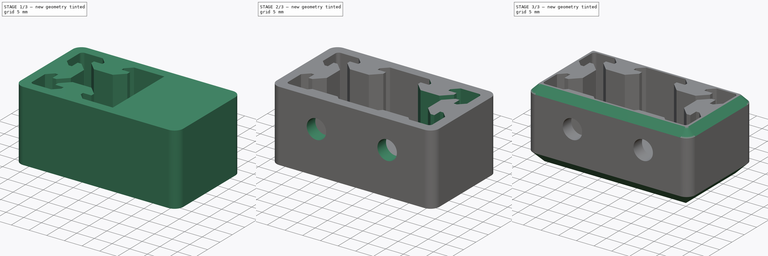
[diagram: build sequence overview — one tinted view per stage of 3, left to right]
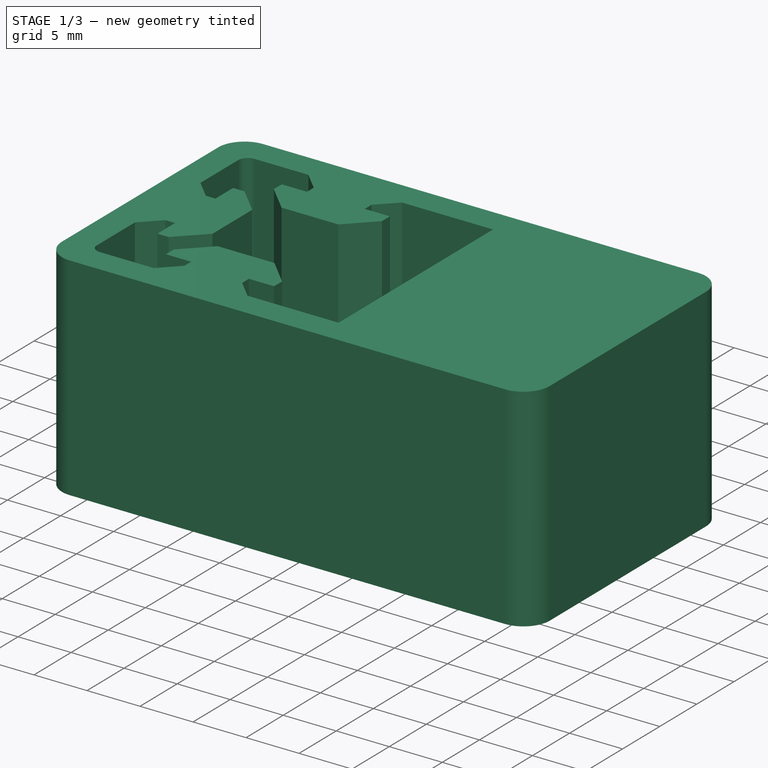
[diagram: stage 1 of 3 — iso view after this stage's code; geometry added in this stage tinted green]
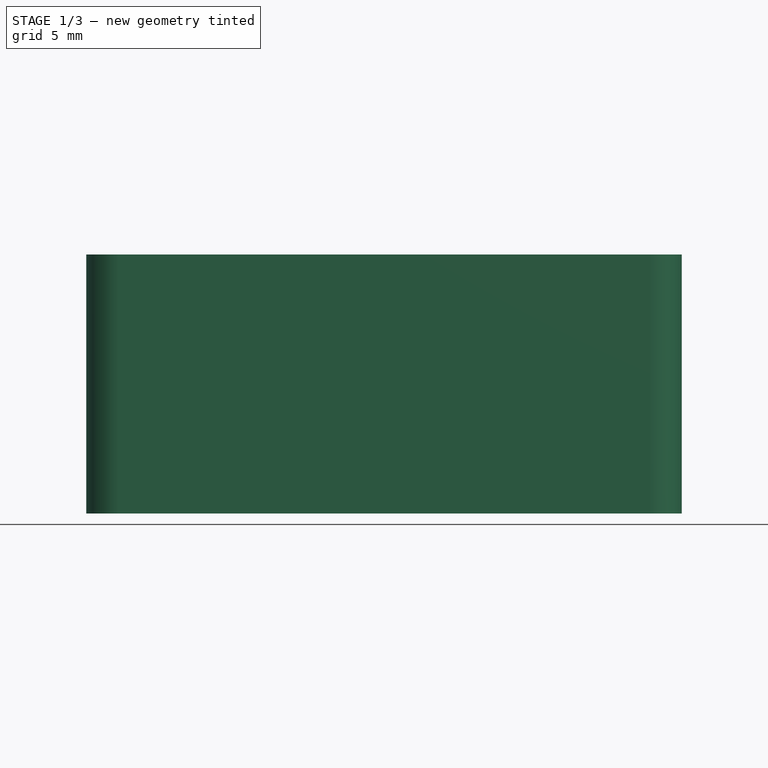
[diagram: stage 1 of 3 — front view after this stage's code; geometry added in this stage tinted green]
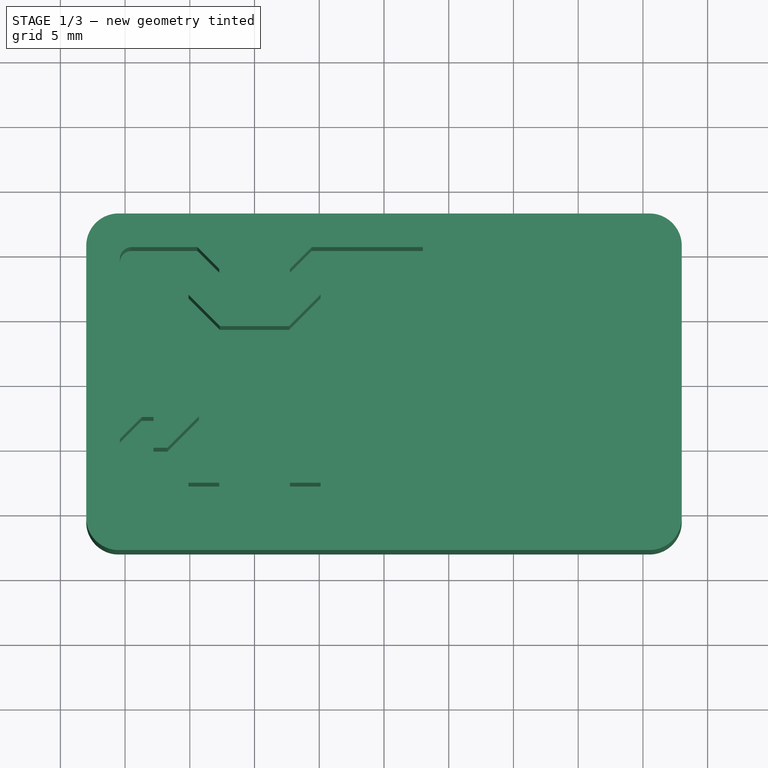
[diagram: stage 1 of 3 — top view after this stage's code; geometry added in this stage tinted green]
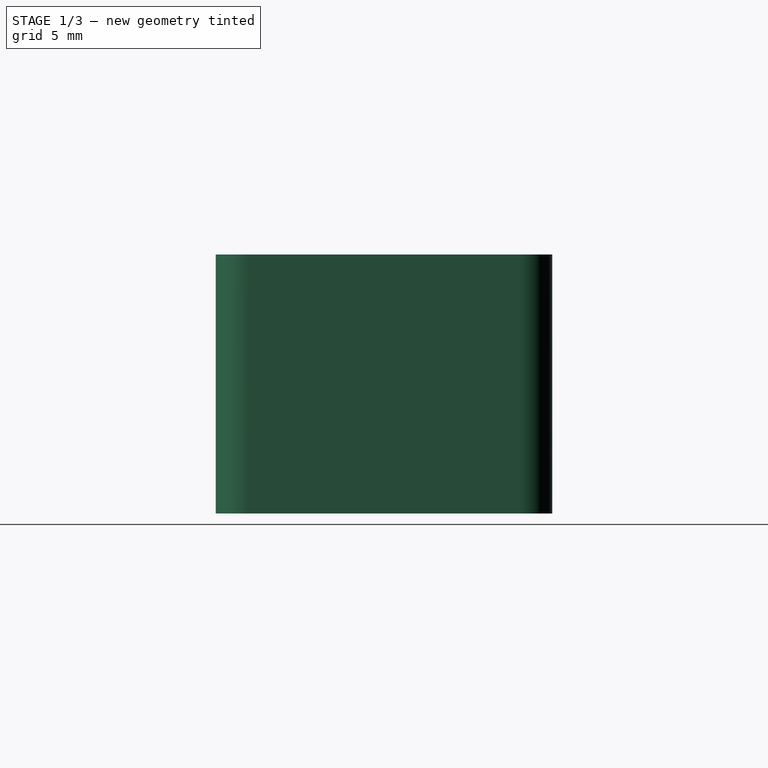
[diagram: stage 1 of 3 — right view after this stage's code; geometry added in this stage tinted green]
FCSTD DOCUMENT  (FreeCAD 0.20R26554 (Git))
Label: 2040 foot
License: All rights reserved
LicenseURL: http://en.wikipedia.org/wiki/All_rights_reserved
objects: Sketcher::SketchObject×4, PartDesign::Pocket×3, PartDesign::Chamfer×2, Part::Feature×1, PartDesign::ShapeBinder×1, PartDesign::Pad×1, PartDesign::Mirrored×1, PartDesign::Body×1
note: 20 computed .brp shape members not serialized (recipe doc carries the construction recipe); baked Part::Feature solids carry a one-line shape summary decoded from their .brp

FEATURE [Part::Feature] Part__Feature  label="2020-800"
  Placement = pos=(-10,0,0) rot=(0,0,1;0rad)
  shape: bbox 40 x 20 x 800 mm, 112 faces (baked)
FEATURE [PartDesign::ShapeBinder] ShapeBinder
  Placement = pos=(-10,0,0) rot=(0,0,1;0rad)
  Support = -> [Part__Feature]
  TraceSupport = false
FEATURE [Sketcher::SketchObject] Sketch
  ExternalGeometry = -> [ShapeBinder]
  FullyConstrained = true
  MapMode = 5
  Support = -> [XY_Plane]
  sketch-geometry (14):
    g0: ArcOfCircle CenterX=-20.5 CenterY=10.5 CenterZ=0 NormalX=0 NormalY=0 NormalZ=1 AngleXU=0 Radius=2.5 StartAngle=1.5708 EndAngle=3.14159
    g1: LineSegment StartX=-20.5 StartY=13 StartZ=0 EndX=20.5 EndY=13 EndZ=0
    g2: ArcOfCircle CenterX=20.5 CenterY=10.5 CenterZ=0 NormalX=0 NormalY=0 NormalZ=1 AngleXU=0 Radius=2.5 StartAngle=1e-16 EndAngle=1.5708
    g3: LineSegment StartX=23 StartY=10.5 StartZ=0 EndX=23 EndY=-10.5 EndZ=0
    g4: ArcOfCircle CenterX=20.5 CenterY=-10.5 CenterZ=0 NormalX=0 NormalY=0 NormalZ=1 AngleXU=0 Radius=2.5 StartAngle=4.71239 EndAngle=6.28319
    g5: LineSegment StartX=20.5 StartY=-13 StartZ=0 EndX=-20.5 EndY=-13 EndZ=0
    g6: ArcOfCircle CenterX=-20.5 CenterY=-10.5 CenterZ=0 NormalX=0 NormalY=0 NormalZ=1 AngleXU=0 Radius=2.5 StartAngle=3.14159 EndAngle=4.71239
    g7: LineSegment StartX=-23 StartY=-10.5 StartZ=0 EndX=-23 EndY=10.5 EndZ=0
    g8: GeomPoint X=-23 Y=13 Z=0
    g9: GeomPoint X=23 Y=-13 Z=0
    g10: LineSegment StartX=-19.5 StartY=-10 StartZ=0 EndX=-19.5 EndY=-13 EndZ=0
    g11: LineSegment StartX=19.5 StartY=10 StartZ=0 EndX=19.5 EndY=13 EndZ=0
    g12: LineSegment StartX=20 StartY=9.5 StartZ=0 EndX=23 EndY=9.5 EndZ=0
    g13: LineSegment StartX=-20 StartY=-9.5 StartZ=0 EndX=-23 EndY=-9.5 EndZ=0
  constraints (36):
    c: Tangent(g0,g1) = 1.5708
    c: Tangent(g1,g2) = 1.5708
    c: Tangent(g2,g3) = 1.5708
    c: Tangent(g3,g4) = 1.5708
    c: Tangent(g4,g5) = 1.5708
    c: Tangent(g5,g6) = 1.5708
    c: Tangent(g6,g7) = 1.5708
    c: Tangent(g7,g0) = 1.5708
    c: Horizontal(g1)
    c: Horizontal(g5)
    c: Vertical(g3)
    c: Vertical(g7)
    c: Equal(g0,g2)
    c: Equal(g2,g4)
    c: Equal(g4,g6)
    c: PointOnObject(g8,g1)
    c: PointOnObject(g8,g7)
    c: PointOnObject(g9,g3)
    c: PointOnObject(g9,g5)
    c: Diameter(g4) = 5
    c: Coincident(g10,g-5)
    c: PointOnObject(g10,g5)
    c: Vertical(g10)
    c: Coincident(g11,g-4)
    c: PointOnObject(g11,g1)
    c: Vertical(g11)
    c: Coincident(g12,g-6)
    c: PointOnObject(g12,g3)
    c: Horizontal(g12)
    c: Equal(g12,g11)
    c: DistanceX(g12,g12) = 3
    c: Equal(g10,g12)
    c: Coincident(g13,g-3)
    c: PointOnObject(g13,g7)
    c: Horizontal(g13)
    c: Equal(g13,g12)
FEATURE [PartDesign::Pad] Pad
  Direction = (0,0,1)
  Length = 20
  Length2 = 100
  Profile = -> Sketch
  ReferenceAxis = -> Sketch [N_Axis]
  Refine = true
  Type = 0
FEATURE [Sketcher::SketchObject] Sketch001
  ExternalGeometry = -> [ShapeBinder]
  FullyConstrained = true
  MapMode = 5
  Placement = pos=(0,0,20) rot=(0,0,1;0rad)
  Support = -> [Pad]
  sketch-geometry (83):
    g0: LineSegment StartX=-19.5 StartY=10.4 StartZ=0 EndX=-14.4143 EndY=10.4 EndZ=0
    g1: LineSegment StartX=-20.4 StartY=4.41431 StartZ=0 EndX=-18.7107 EndY=2.725 EndZ=0
    g2: LineSegment StartX=-20.4 StartY=9.5 StartZ=0 EndX=-20.4 EndY=4.41431 EndZ=0
    g3: LineSegment StartX=-19.5 StartY=10 StartZ=0 EndX=-19.5 EndY=10.4 EndZ=0
    g4: LineSegment StartX=-20 StartY=9.5 StartZ=0 EndX=-20.4 EndY=9.5 EndZ=0
    g5: LineSegment StartX=-18.7107 StartY=2.725 StartZ=0 EndX=-17.8 EndY=2.725 EndZ=0
    g6: LineSegment StartX=-17.8 StartY=2.725 StartZ=0 EndX=-17.8 EndY=5.1 EndZ=0
    g7: LineSegment StartX=-17.8 StartY=5.1 StartZ=0 EndX=-16.7263 EndY=5.1 EndZ=0
    g8: LineSegment StartX=-16.7263 StartY=5.1 StartZ=0 EndX=-14.3 EndY=2.67365 EndZ=0
    g9: LineSegment StartX=-14.3 StartY=2.67365 StartZ=0 EndX=-14.3 EndY=-2.67365 EndZ=0
    g10: LineSegment StartX=-14.3 StartY=-2.67365 StartZ=0 EndX=-16.7263 EndY=-5.1 EndZ=0
    g11: LineSegment StartX=-16.7263 StartY=-5.1 StartZ=0 EndX=-17.8 EndY=-5.1 EndZ=0
    g12: LineSegment StartX=-17.8 StartY=-5.1 StartZ=0 EndX=-17.8 EndY=-2.725 EndZ=0
    g13: LineSegment StartX=-17.8 StartY=-2.725 StartZ=0 EndX=-18.7107 EndY=-2.725 EndZ=0
    g14: LineSegment StartX=-18.7107 StartY=-2.725 StartZ=0 EndX=-20.4 EndY=-4.41431 EndZ=0
    g15: LineSegment StartX=-20.4 StartY=-4.41431 StartZ=0 EndX=-20.4 EndY=-9.5 EndZ=0
    g16: LineSegment StartX=-19.5 StartY=-10.4 StartZ=0 EndX=-14.4143 EndY=-10.4 EndZ=0
    g17: LineSegment StartX=-14.4143 StartY=-10.4 StartZ=0 EndX=-12.725 EndY=-8.71069 EndZ=0
    g18: LineSegment StartX=-12.725 StartY=-8.71069 StartZ=0 EndX=-12.725 EndY=-7.8 EndZ=0
    g19: LineSegment StartX=-12.725 StartY=-7.8 StartZ=0 EndX=-15.1 EndY=-7.8 EndZ=0
    g20: LineSegment StartX=-15.1 StartY=-7.8 StartZ=0 EndX=-15.1 EndY=-6.72635 EndZ=0
    g21: LineSegment StartX=-15.1 StartY=-6.72635 StartZ=0 EndX=-12.6737 EndY=-4.3 EndZ=0
    g22: LineSegment StartX=-12.6737 StartY=-4.3 StartZ=0 EndX=-7.32635 EndY=-4.3 EndZ=0
    g23: LineSegment StartX=-7.32635 StartY=-4.3 StartZ=0 EndX=-4.9 EndY=-6.72635 EndZ=0
    g24: LineSegment StartX=-4.9 StartY=-6.72635 StartZ=0 EndX=-4.9 EndY=-7.8 EndZ=0
    g25: LineSegment StartX=-4.9 StartY=-7.8 StartZ=0 EndX=-7.275 EndY=-7.8 EndZ=0
    g26: LineSegment StartX=-7.275 StartY=-7.8 StartZ=0 EndX=-7.275 EndY=-8.71069 EndZ=0
    g27: LineSegment StartX=-7.275 StartY=-8.71069 StartZ=0 EndX=-5.58569 EndY=-10.4 EndZ=0
    g28: LineSegment StartX=-5.58569 StartY=-10.4 StartZ=0 EndX=3 EndY=-10.4 EndZ=0
    g29: LineSegment StartX=3 StartY=10.4 StartZ=0 EndX=-5.58569 EndY=10.4 EndZ=0
    g30: LineSegment StartX=-5.58569 StartY=10.4 StartZ=0 EndX=-7.275 EndY=8.71069 EndZ=0
    g31: LineSegment StartX=-7.275 StartY=8.71069 StartZ=0 EndX=-7.275 EndY=7.8 EndZ=0
    g32: LineSegment StartX=-7.275 StartY=7.8 StartZ=0 EndX=-4.9 EndY=7.8 EndZ=0
    g33: LineSegment StartX=-4.9 StartY=7.8 StartZ=0 EndX=-4.9 EndY=6.72635 EndZ=0
    g34: LineSegment StartX=-4.9 StartY=6.72635 StartZ=0 EndX=-7.32635 EndY=4.3 EndZ=0
    g35: LineSegment StartX=-7.32635 StartY=4.3 StartZ=0 EndX=-12.6737 EndY=4.3 EndZ=0
    g36: LineSegment StartX=-12.6737 StartY=4.3 StartZ=0 EndX=-15.1 EndY=6.72635 EndZ=0
    g37: LineSegment StartX=-15.1 StartY=6.72635 StartZ=0 EndX=-15.1 EndY=7.8 EndZ=0
    g38: LineSegment StartX=-15.1 StartY=7.8 StartZ=0 EndX=-12.725 EndY=7.8 EndZ=0
    g39: LineSegment StartX=-12.725 StartY=7.8 StartZ=0 EndX=-12.725 EndY=8.71069 EndZ=0
    g40: LineSegment StartX=-12.725 StartY=8.71069 StartZ=0 EndX=-14.4143 EndY=10.4 EndZ=0
    g41: LineSegment StartX=-18.545 StartY=3.125 StartZ=0 EndX=-18.545 EndY=2.725 EndZ=0
    g42: LineSegment StartX=-18.2 StartY=3.125 StartZ=0 EndX=-17.8 EndY=3.125 EndZ=0
    g43: LineSegment StartX=-17.8 StartY=5.1 StartZ=0 EndX=-17.8 EndY=5.5 EndZ=0
    g44: LineSegment StartX=-17.8 StartY=-5.1 StartZ=0 EndX=-17.8 EndY=-5.5 EndZ=0
    g45: LineSegment StartX=-18.2 StartY=-3.125 StartZ=0 EndX=-17.8 EndY=-3.125 EndZ=0
    g46: LineSegment StartX=-18.2 StartY=-3.125 StartZ=0 EndX=-18.2 EndY=-2.725 EndZ=0
    g47: LineSegment StartX=-20 StartY=-4.58 StartZ=0 EndX=-20.4 EndY=-4.58 EndZ=0
    g48: LineSegment StartX=-19.5 StartY=-10 StartZ=0 EndX=-19.5 EndY=-10.4 EndZ=0
    g49: LineSegment StartX=-13.125 StartY=-8.545 StartZ=0 EndX=-12.725 EndY=-8.545 EndZ=0
    g50: LineSegment StartX=-13.125 StartY=-8.2 StartZ=0 EndX=-13.125 EndY=-7.8 EndZ=0
    g51: LineSegment StartX=-15.1 StartY=-7.8 StartZ=0 EndX=-15.5 EndY=-7.8 EndZ=0
    g52: LineSegment StartX=-12.6737 StartY=-4.3 StartZ=0 EndX=-12.6737 EndY=-3.9 EndZ=0
    g53: LineSegment StartX=-4.9 StartY=-7.8 StartZ=0 EndX=-4.5 EndY=-7.8 EndZ=0
    g54: LineSegment StartX=-6.875 StartY=-8.2 StartZ=0 EndX=-6.875 EndY=-7.8 EndZ=0
    g55: LineSegment StartX=-5.42 StartY=-10 StartZ=0 EndX=-5.42 EndY=-10.4 EndZ=0
    g56: LineSegment StartX=-13.125 StartY=8.545 StartZ=0 EndX=-12.725 EndY=8.545 EndZ=0
    g57: LineSegment StartX=-13.125 StartY=8.2 StartZ=0 EndX=-13.125 EndY=7.8 EndZ=0
    g58: LineSegment StartX=-15.1 StartY=7.8 StartZ=0 EndX=-15.5 EndY=7.8 EndZ=0
    g59: LineSegment StartX=-12.6737 StartY=4.3 StartZ=0 EndX=-12.6737 EndY=3.9 EndZ=0
    g60: LineSegment StartX=-7.32635 StartY=4.3 StartZ=0 EndX=-7.0435 EndY=4.01716 EndZ=0
    g61: LineSegment StartX=-15.1 StartY=6.72635 StartZ=0 EndX=-15.3828 EndY=6.4435 EndZ=0
    g62: LineSegment StartX=-4.9 StartY=7.8 StartZ=0 EndX=-4.9 EndY=8.2 EndZ=0
    g63: LineSegment StartX=-6.875 StartY=8.545 StartZ=0 EndX=-7.15784 EndY=8.82784 EndZ=0
    g64: LineSegment StartX=-5.42 StartY=10 StartZ=0 EndX=-5.42 EndY=10.4 EndZ=0
    g65: LineSegment StartX=-12.6737 StartY=-4.3 StartZ=0 EndX=-12.9565 EndY=-4.01716 EndZ=0
    g66: LineSegment StartX=-14.58 StartY=-10 StartZ=0 EndX=-14.2972 EndY=-10.2828 EndZ=0
    g67: LineSegment StartX=-18.545 StartY=-3.125 StartZ=0 EndX=-18.8278 EndY=-2.84216 EndZ=0
    g68: LineSegment StartX=-16.7263 StartY=-5.1 StartZ=0 EndX=-16.4435 EndY=-5.38284 EndZ=0
    g69: LineSegment StartX=-20 StartY=4.58 StartZ=0 EndX=-20.2828 EndY=4.29716 EndZ=0
    g70: LineSegment StartX=-14.58 StartY=10 StartZ=0 EndX=-14.2972 EndY=10.2828 EndZ=0
    g71: LineSegment StartX=-6.875 StartY=8.2 StartZ=0 EndX=-7.275 EndY=8.2 EndZ=0
    g72: LineSegment StartX=-4.9 StartY=6.72635 StartZ=0 EndX=-4.5 EndY=6.72635 EndZ=0
    g73: LineSegment StartX=-7.32635 StartY=-4.3 StartZ=0 EndX=-7.0435 EndY=-4.01716 EndZ=0
    g74: LineSegment StartX=-6.875 StartY=-8.545 StartZ=0 EndX=-7.15784 EndY=-8.82784 EndZ=0
    g75: LineSegment StartX=-6.875 StartY=-8.2 StartZ=0 EndX=-7.275 EndY=-8.2 EndZ=0
    g76: LineSegment StartX=-16.7263 StartY=5.1 StartZ=0 EndX=-16.4435 EndY=5.38284 EndZ=0
    g77: LineSegment StartX=-14.3 StartY=2.67365 StartZ=0 EndX=-13.9 EndY=2.67365 EndZ=0
    g78: LineSegment StartX=3 StartY=10.4 StartZ=0 EndX=3 EndY=-10.4 EndZ=0
    g79: ArcOfCircle CenterX=-19.5 CenterY=9.5 CenterZ=0 NormalX=0 NormalY=0 NormalZ=1 AngleXU=0 Radius=0.9 StartAngle=1.5708 EndAngle=3.14159
    g80: GeomPoint X=-20.4 Y=10.4 Z=0
    g81: ArcOfCircle CenterX=-19.5 CenterY=-9.5 CenterZ=0 NormalX=0 NormalY=0 NormalZ=1 AngleXU=0 Radius=0.9 StartAngle=3.14159 EndAngle=4.71239
    g82: GeomPoint X=-20.4 Y=-10.4 Z=0
  constraints (243):
    c: Horizontal(g0)
    c: Coincident(g2,g1)
    c: Coincident(g3,g-3)
    c: Coincident(g4,g-4)
    c: PointOnObject(g4,g2)
    c: Horizontal(g4)
    c: DistanceX(g4,g4) = 0.4
    c: Equal(g4,g3)
    c: Vertical(g2)
    c: Vertical(g3)
    c: Coincident(g5,g1)
    c: Horizontal(g5)
    c: Coincident(g6,g5)
    c: Vertical(g6)
    c: Coincident(g7,g6)
    c: Horizontal(g7)
    c: Coincident(g8,g7)
    c: Coincident(g9,g8)
    c: Vertical(g9)
    c: Coincident(g10,g9)
    c: Coincident(g11,g10)
    c: Horizontal(g11)
    c: Coincident(g12,g11)
    c: Vertical(g12)
    c: Coincident(g13,g12)
    c: Horizontal(g13)
    c: Coincident(g14,g13)
    c: Coincident(g15,g14)
    c: Vertical(g15)
    c: Horizontal(g16)
    c: Coincident(g16,g17)
    c: Coincident(g17,g18)
    c: Coincident(g18,g19)
    c: Horizontal(g19)
    c: Coincident(g19,g20)
    c: Vertical(g20)
    c: Coincident(g20,g21)
    c: Coincident(g21,g22)
    c: Horizontal(g22)
    c: Coincident(g22,g23)
    c: Coincident(g23,g24)
    c: Vertical(g24)
    c: Coincident(g24,g25)
    c: Horizontal(g25)
    c: Coincident(g25,g26)
    c: Vertical(g26)
    c: Coincident(g26,g27)
    c: Coincident(g27,g28)
    c: Horizontal(g28)
    c: Horizontal(g29)
    c: Coincident(g29,g30)
    c: Coincident(g30,g31)
    c: Vertical(g31)
    c: Coincident(g31,g32)
    c: Horizontal(g32)
    c: Coincident(g32,g33)
    c: Vertical(g33)
    c: Coincident(g33,g34)
    c: Coincident(g34,g35)
    c: Horizontal(g35)
    c: Coincident(g35,g36)
    c: Coincident(g36,g37)
    c: Vertical(g37)
    c: Coincident(g37,g38)
    c: Horizontal(g38)
    c: Coincident(g38,g39)
    c: Vertical(g39)
    c: Coincident(g39,g40)
    c: Coincident(g40,g0)
    c: Vertical(g18)
    c: Coincident(g41,g-5)
    c: PointOnObject(g41,g5)
    c: Vertical(g41)
    c: Equal(g41,g4)
    c: Coincident(g42,g-5)
    c: Horizontal(g42)
    c: Equal(g42,g41)
    c: PointOnObject(g42,g6)
    c: Parallel(g1,g-6)
    c: Coincident(g43,g6)
    c: PointOnObject(g43,g-7)
    c: Vertical(g43)
    c: Equal(g4,g43)
    c: Parallel(g8,g-8)
    c: Parallel(g-10,g10)
    c: Coincident(g44,g11)
    c: PointOnObject(g44,g-11)
    c: Vertical(g44)
    c: Coincident(g45,g-13)
    c: PointOnObject(g45,g12)
    c: Horizontal(g45)
    c: Equal(g44,g45)
    c: Coincident(g46,g45)
    c: PointOnObject(g46,g13)
    c: Vertical(g46)
    c: Equal(g45,g46)
    c: Parallel(g-14,g14)
    c: Coincident(g47,g-15)
    c: PointOnObject(g47,g15)
    c: Horizontal(g47)
    c: Equal(g47,g45)
    c: Coincident(g48,g-16)
    c: Vertical(g48)
    c: Equal(g48,g47)
    c: Parallel(g17,g-17)
    c: Coincident(g49,g-17)
    c: PointOnObject(g49,g18)
    c: Horizontal(g49)
    c: Equal(g49,g48)
    c: Coincident(g50,g-18)
    c: PointOnObject(g50,g19)
    c: Vertical(g50)
    c: Equal(g50,g49)
    c: Coincident(g51,g19)
    c: PointOnObject(g51,g-19)
    c: Horizontal(g51)
    c: Equal(g50,g51)
    c: Parallel(g21,g-20)
    c: Coincident(g52,g21)
    c: PointOnObject(g52,g-21)
    c: Vertical(g52)
    c: Equal(g52,g51)
    c: Parallel(g23,g-23)
    c: Coincident(g53,g24)
    c: PointOnObject(g53,g-24)
    c: Horizontal(g53)
    c: Equal(g53,g52)
    c: Coincident(g54,g-26)
    c: PointOnObject(g54,g25)
    c: Vertical(g54)
    c: Equal(g54,g53)
    c: Parallel(g27,g-27)
    c: Coincident(g55,g-28)
    c: PointOnObject(g55,g28)
    c: Vertical(g55)
    c: Equal(g55,g53)
    c: Parallel(g-29,g40)
    c: Coincident(g56,g-30)
    c: PointOnObject(g56,g39)
    c: Horizontal(g56)
    c: Equal(g56,g3)
    c: Coincident(g57,g-31)
    c: PointOnObject(g57,g38)
    c: Vertical(g57)
    c: Equal(g57,g56)
    c: Coincident(g58,g37)
    c: PointOnObject(g58,g-32)
    c: Horizontal(g58)
    c: Equal(g58,g57)
    c: Parallel(g-33,g36)
    c: Coincident(g59,g35)
    c: PointOnObject(g59,g-34)
    c: Vertical(g59)
    c: Equal(g58,g59)
    c: Parallel(g-36,g34)
    c: PointOnObject(g60,g-36)
    c: Coincident(g60,g34)
    c: Perpendicular(g34,g60)
    c: Coincident(g61,g36)
    c: PointOnObject(g61,g-33)
    c: Perpendicular(g36,g61)
    c: Equal(g61,g58)
    c: Coincident(g62,g32)
    c: Vertical(g62)
    c: PointOnObject(g62,g-38)
    c: Coincident(g63,g-40)
    c: PointOnObject(g63,g30)
    c: Perpendicular(g63,g30)
    c: Coincident(g64,g-41)
    c: PointOnObject(g64,g29)
    c: Vertical(g64)
    c: Equal(g63,g64)
    c: Parallel(g-40,g30)
    c: Coincident(g65,g21)
    c: PointOnObject(g65,g-20)
    c: Perpendicular(g65,g21)
    c: Equal(g65,g52)
    c: Coincident(g66,g-17)
    c: PointOnObject(g66,g17)
    c: Perpendicular(g17,g66)
    c: Equal(g66,g49)
    c: Coincident(g67,g-14)
    c: PointOnObject(g67,g14)
    c: Perpendicular(g67,g14)
    c: Equal(g67,g46)
    c: Coincident(g68,g10)
    c: PointOnObject(g68,g-10)
    c: Perpendicular(g10,g68)
    c: Equal(g68,g44)
    c: Coincident(g69,g-6)
    c: PointOnObject(g69,g1)
    c: Perpendicular(g69,g1)
    c: Equal(g69,g41)
    c: Coincident(g70,g-29)
    c: PointOnObject(g70,g40)
    c: Perpendicular(g40,g70)
    c: Equal(g70,g56)
    c: Coincident(g71,g-39)
    c: PointOnObject(g71,g31)
    c: Horizontal(g71)
    c: Equal(g71,g63)
    c: Equal(g71,g62)
    c: Coincident(g72,g33)
    c: PointOnObject(g72,g-37)
    c: Horizontal(g72)
    c: Equal(g72,g62)
    c: Equal(g72,g4)
    c: Equal(g60,g72)
    c: PointOnObject(g73,g-23)
    c: Coincident(g73,g22)
    c: Perpendicular(g23,g73)
    c: Equal(g73,g53)
    c: Coincident(g74,g-27)
    c: PointOnObject(g74,g27)
    c: Perpendicular(g74,g27)
    c: Coincident(g75,g54)
    c: PointOnObject(g75,g26)
    c: Equal(g74,g75)
    c: Equal(g75,g54)
    c: Horizontal(g75)
    c: Coincident(g76,g7)
    c: PointOnObject(g76,g-8)
    c: Perpendicular(g8,g76)
    c: Equal(g76,g43)
    c: Coincident(g77,g8)
    c: PointOnObject(g77,g-9)
    c: Horizontal(g77)
    c: Equal(g76,g77)
    c: Equal(g45,g4)
    c: Coincident(g78,g29)
    c: Coincident(g78,g28)
    c: Vertical(g78)
    c: PointOnObject(g-42,g78)
    c: PointOnObject(g80,g2)
    c: PointOnObject(g80,g0)
    c: Tangent(g2,g79) = -1.5708
    c: Tangent(g0,g79) = 1.5708
    c: Coincident(g0,g3)
    c: PointOnObject(g82,g15)
    c: PointOnObject(g82,g16)
    c: Tangent(g15,g81) = -1.5708
    c: Tangent(g16,g81) = -1.5708
    c: Coincident(g16,g48)
FEATURE [PartDesign::Pocket] Pocket
  BaseFeature = -> Pad
  Direction = (0,0,-1)
  Length = 17
  Length2 = 100
  Profile = -> Sketch001
  ReferenceAxis = -> Sketch001 [N_Axis]
  Refine = true
  Type = 0
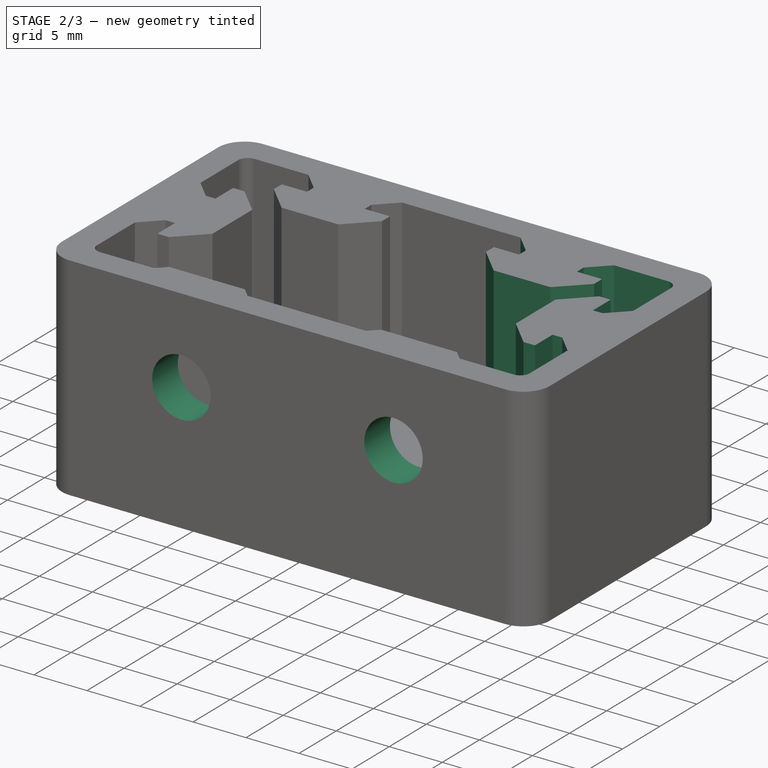
[diagram: stage 2 of 3 — iso view after this stage's code; geometry added in this stage tinted green]
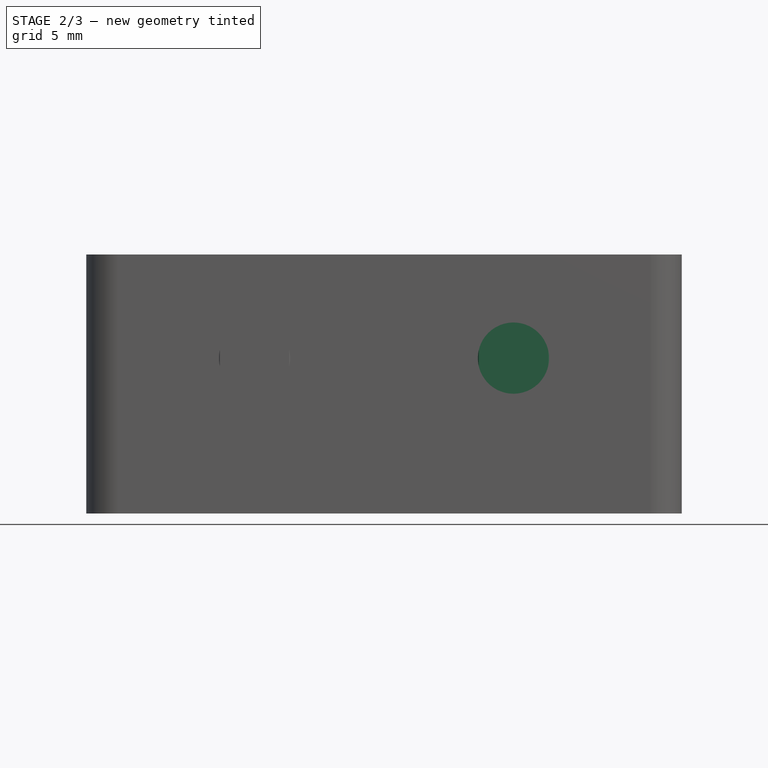
[diagram: stage 2 of 3 — front view after this stage's code; geometry added in this stage tinted green]
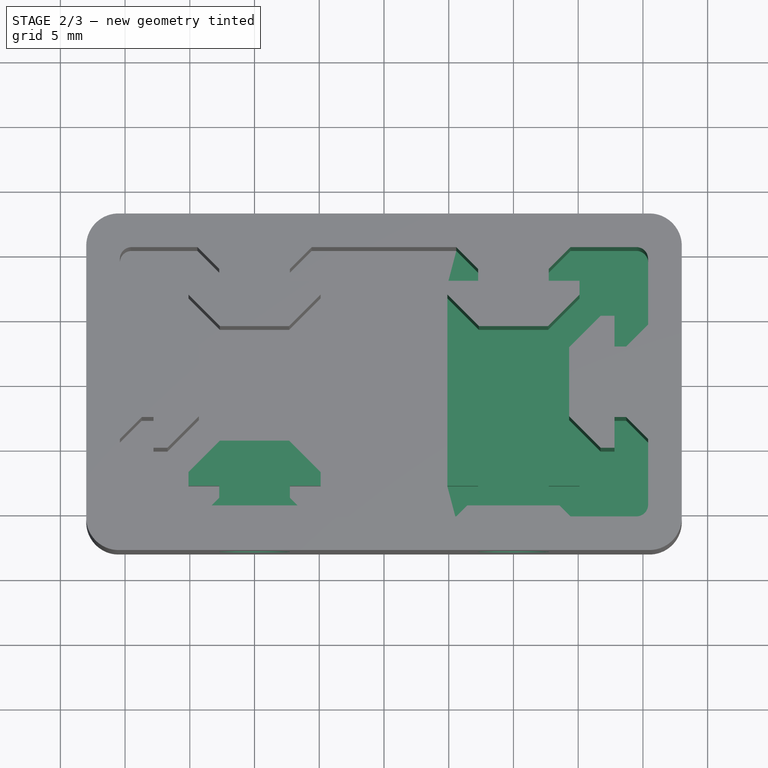
[diagram: stage 2 of 3 — top view after this stage's code; geometry added in this stage tinted green]
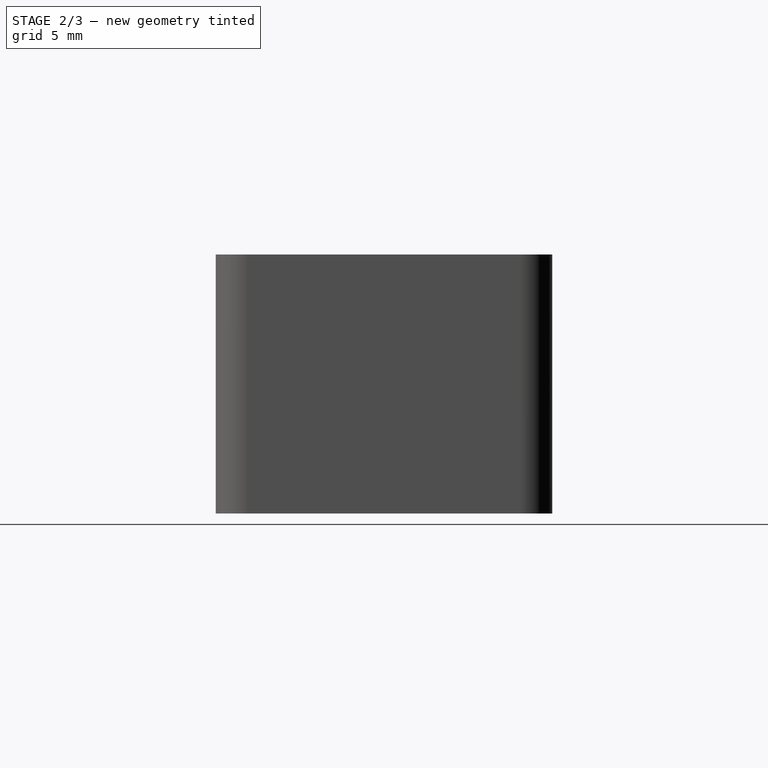
[diagram: stage 2 of 3 — right view after this stage's code; geometry added in this stage tinted green]
FEATURE [PartDesign::Mirrored] Mirrored
  BaseFeature = -> Pocket
  MirrorPlane = -> Sketch001 [V_Axis]
  Originals = -> [Pocket]
  Overlap = 0
  Refine = true
FEATURE [Sketcher::SketchObject] Sketch002
  ExternalGeometry = -> [Mirrored]
  FullyConstrained = true
  MapMode = 5
  Placement = pos=(0,0,20) rot=(0,0,1;0rad)
  Support = -> [Mirrored]
  sketch-geometry (5):
    g0: LineSegment StartX=-15.1 StartY=-4.3 StartZ=0 EndX=15.1 EndY=-4.3 EndZ=0
    g1: LineSegment StartX=15.1 StartY=-4.3 StartZ=0 EndX=15.1 EndY=-9.55534 EndZ=0
    g2: LineSegment StartX=15.1 StartY=-9.55534 StartZ=0 EndX=-15.1 EndY=-9.55534 EndZ=0
    g3: LineSegment StartX=-15.1 StartY=-9.55534 StartZ=0 EndX=-15.1 EndY=-4.3 EndZ=0
    g4: GeomPoint X=13.5697 Y=-9.55534 Z=0
  constraints (13):
    c: Coincident(g0,g1)
    c: Coincident(g1,g2)
    c: Coincident(g3,g0)
    c: Horizontal(g0)
    c: Horizontal(g2)
    c: Vertical(g1)
    c: Vertical(g3)
    c: PointOnObject(g-3,g0)
    c: PointOnObject(g-4,g3)
    c: Coincident(g2,g3)
    c: PointOnObject(g-5,g1)
    c: Symmetric(g-6,g-6,g4)
    c: PointOnObject(g4,g2)
FEATURE [PartDesign::Pocket] Pocket001
  BaseFeature = -> Mirrored
  Direction = (0,0,-1)
  Length = 14
  Length2 = 100
  Profile = -> Sketch002
  ReferenceAxis = -> Sketch002 [N_Axis]
  Refine = true
  Type = 0
FEATURE [Sketcher::SketchObject] Sketch003
  ExternalGeometry = -> [Pocket001]
  FullyConstrained = true
  MapMode = 5
  Placement = pos=(0,-9.55534,0) rot=(0,0.707107,0.707107;3.14159rad)
  Support = -> [Pocket001]
  sketch-geometry (6):
    g0: Circle CenterX=-10 CenterY=12 CenterZ=0 NormalX=0 NormalY=0 NormalZ=1 AngleXU=0 Radius=2.75
    g1: Circle CenterX=10 CenterY=12 CenterZ=0 NormalX=0 NormalY=0 NormalZ=1 AngleXU=0 Radius=2.75
    g2: LineSegment StartX=-13.5697 StartY=6 StartZ=0 EndX=-10 EndY=12 EndZ=0
    g3: LineSegment StartX=-6.43034 StartY=6 StartZ=0 EndX=-10 EndY=12 EndZ=0
    g4: LineSegment StartX=10 StartY=12 StartZ=0 EndX=6.43034 EndY=6 EndZ=0
    g5: LineSegment StartX=10 StartY=12 StartZ=0 EndX=13.5697 EndY=6 EndZ=0
  constraints (14):
    c: Equal(g0,g1)
    c: Horizontal(g1,g0)
    c: Diameter(g0) = 5.5
    c: Coincident(g2,g-3)
    c: Coincident(g2,g0)
    c: Coincident(g3,g-3)
    c: Coincident(g3,g0)
    c: Coincident(g4,g1)
    c: Coincident(g4,g-4)
    c: Coincident(g5,g1)
    c: Coincident(g5,g-4)
    c: Equal(g2,g3)
    c: Equal(g4,g5)
    c: DistanceY(g2,g0) = 6
FEATURE [PartDesign::Pocket] Pocket002
  BaseFeature = -> Pocket001
  Direction = (0,-1,2e-16)
  Length = 5
  Length2 = 100
  Profile = -> Sketch003
  ReferenceAxis = -> Sketch003 [N_Axis]
  Refine = true
  Type = 1
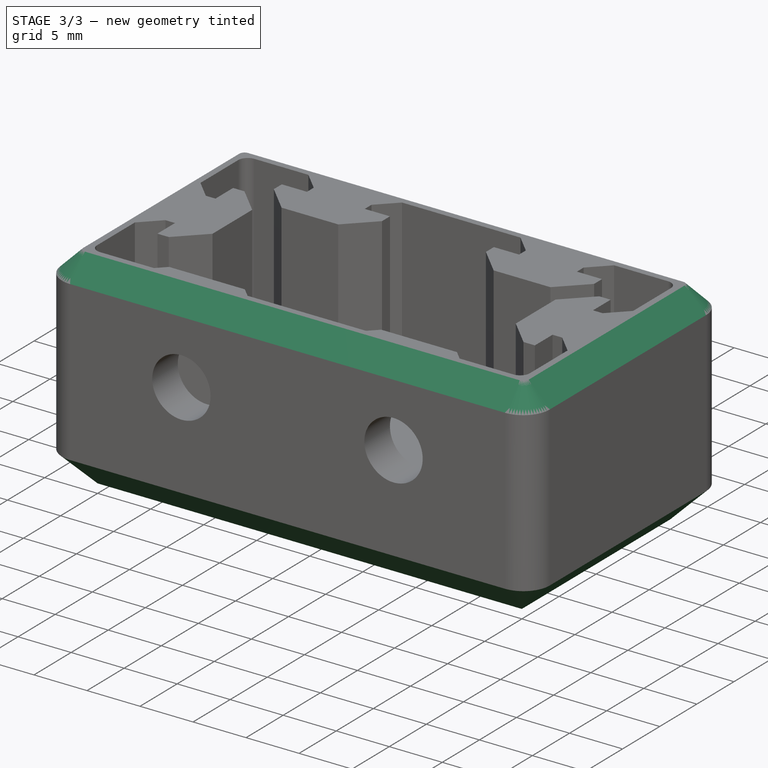
[diagram: stage 3 of 3 — iso view after this stage's code; geometry added in this stage tinted green]
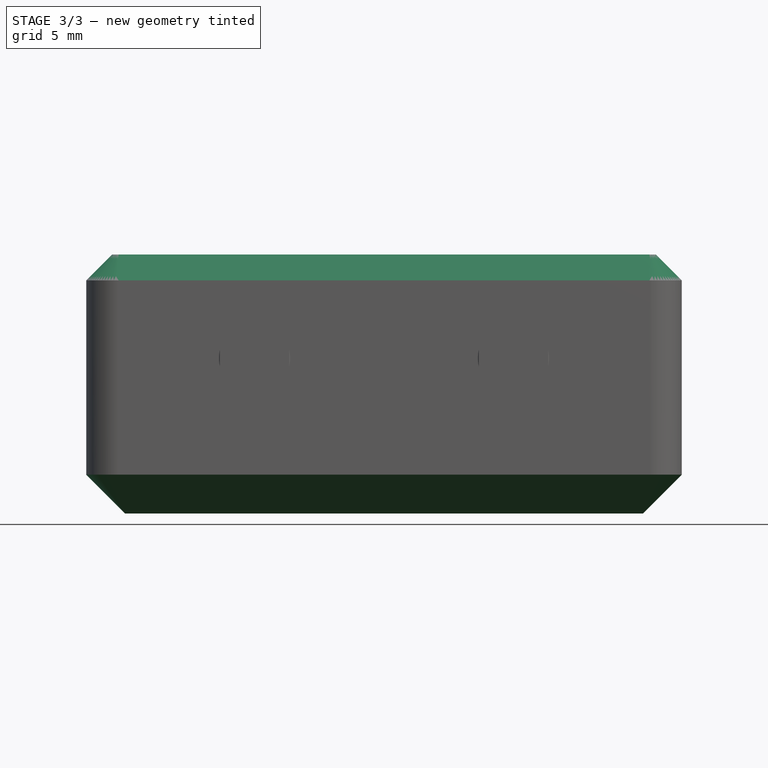
[diagram: stage 3 of 3 — front view after this stage's code; geometry added in this stage tinted green]
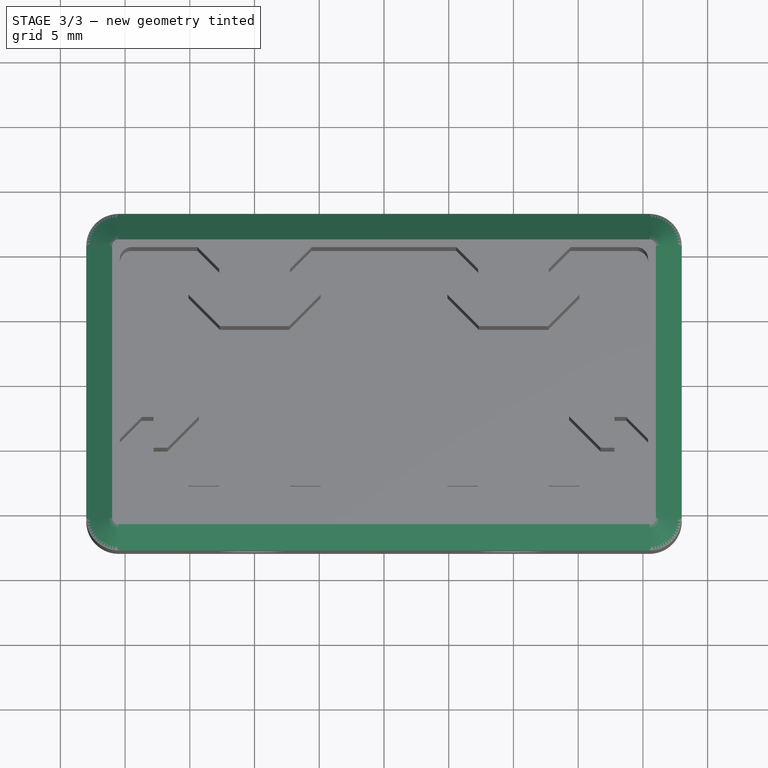
[diagram: stage 3 of 3 — top view after this stage's code; geometry added in this stage tinted green]
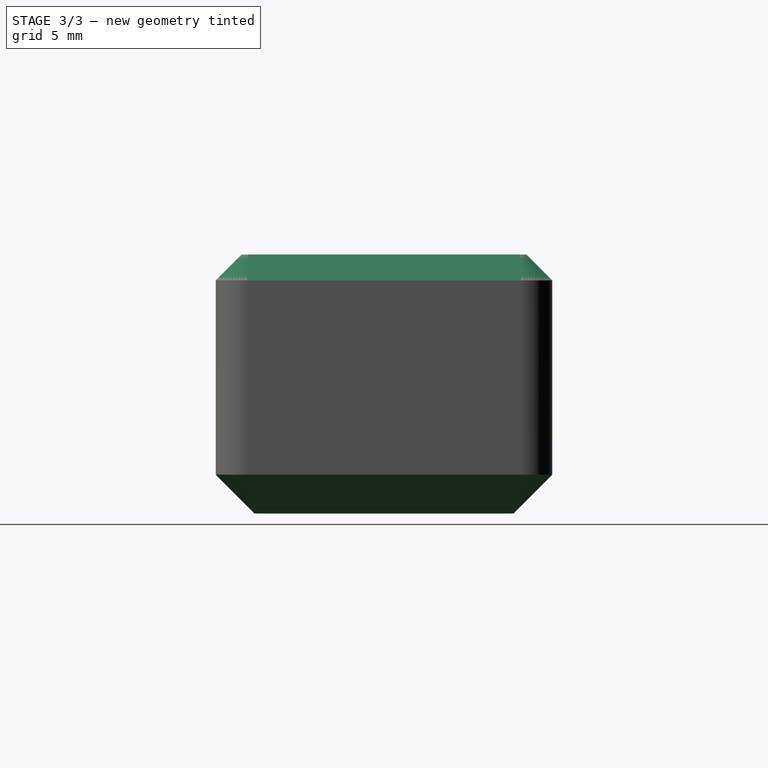
[diagram: stage 3 of 3 — right view after this stage's code; geometry added in this stage tinted green]
FEATURE [PartDesign::Chamfer] Chamfer
  Angle = 45
  Base = -> Pocket002 [Edge12]
  BaseFeature = -> Pocket002
  ChamferType = 2
  FlipDirection = false
  Refine = true
  Size = 3
  Size2 = 1
  SupportTransform = false
FEATURE [PartDesign::Chamfer] Chamfer001
  Angle = 45
  Base = -> Chamfer [Edge15]
  BaseFeature = -> Chamfer
  ChamferType = 0
  FlipDirection = false
  Refine = true
  Size = 2
  Size2 = 1
  SupportTransform = false
FEATURE [PartDesign::Body] Body
  Group = -> [ShapeBinder,Sketch,Pad,Sketch001,Pocket,Mirrored,Sketch002,Pocket001,Sketch003,Pocket002,Chamfer,Chamfer001]
  Origin = -> Origin
  Tip = -> Chamfer001
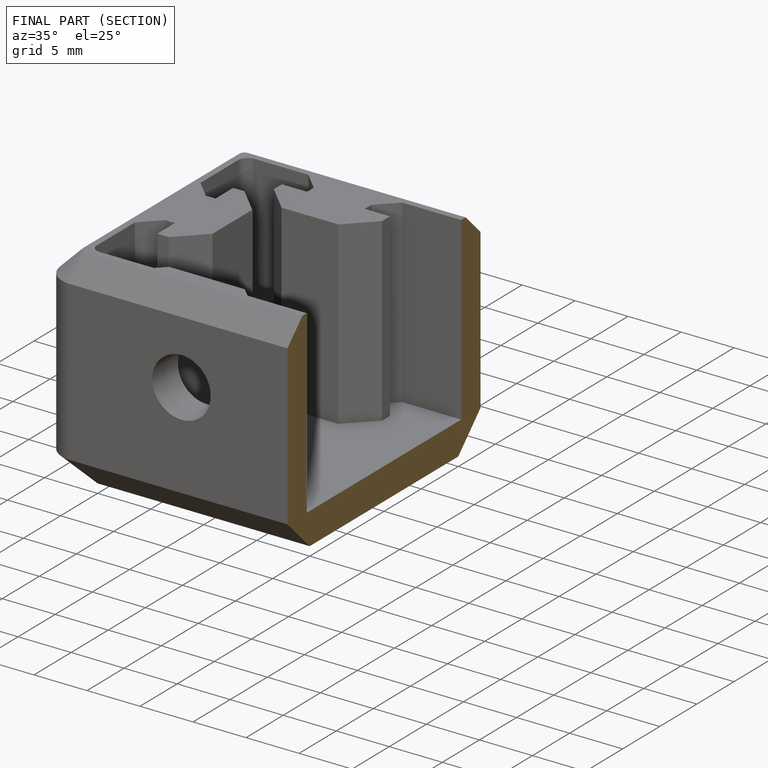
[diagram: finished part — half-section view (interior)]
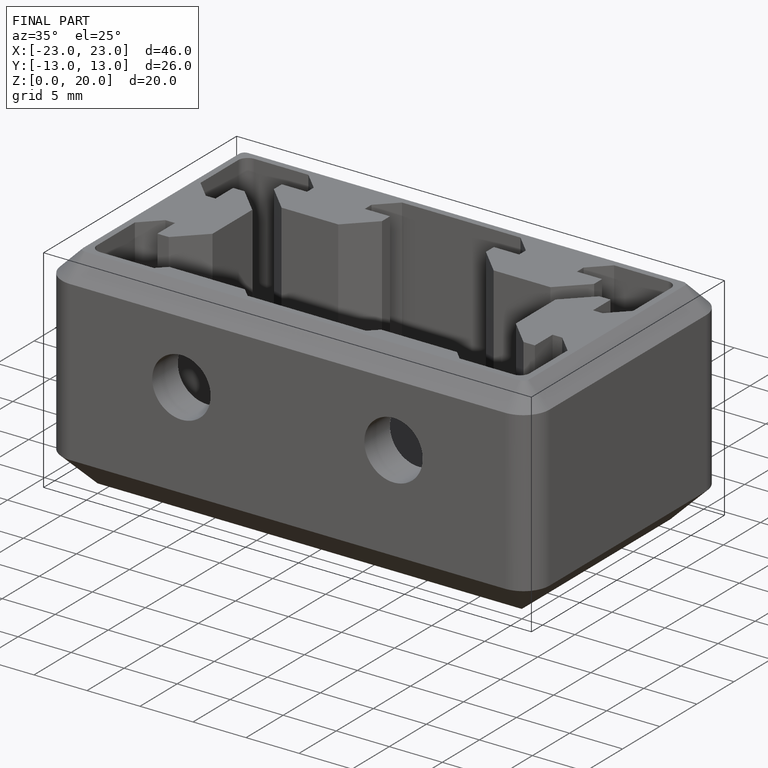
[diagram: finished part — iso view with bounding-box wireframe]
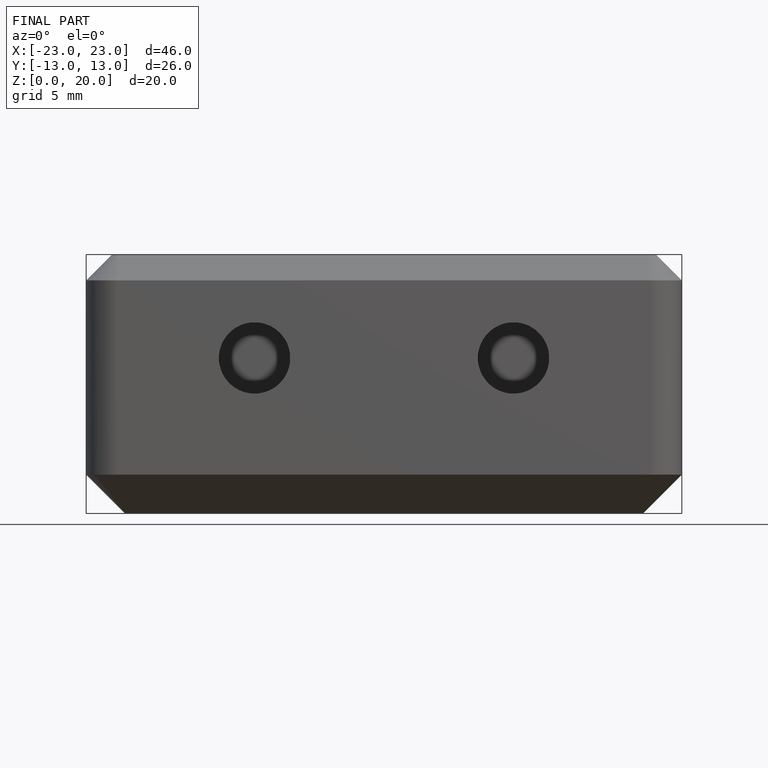
[diagram: finished part — front view with bounding-box wireframe]
